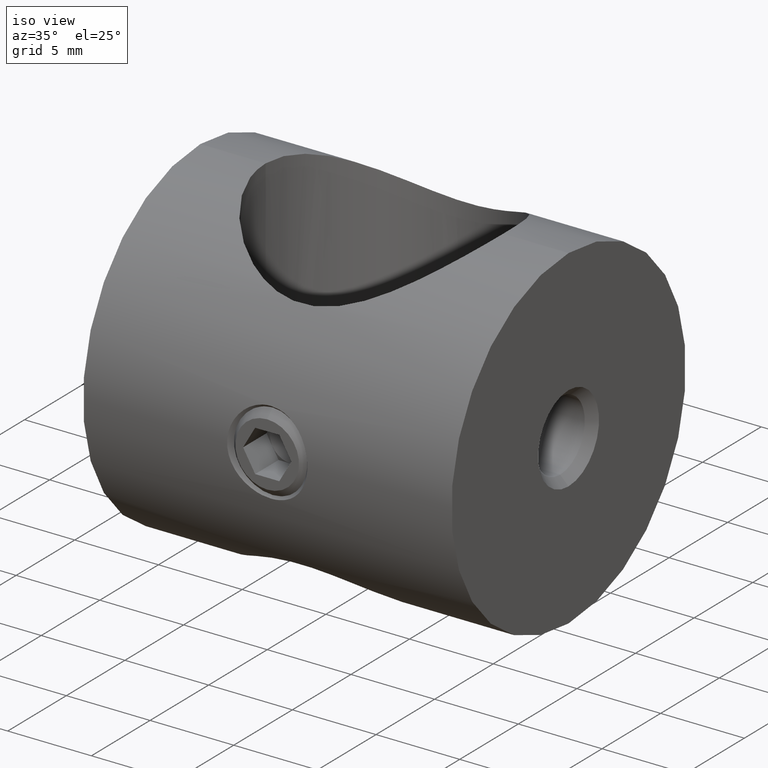
[diagram: clean part render]
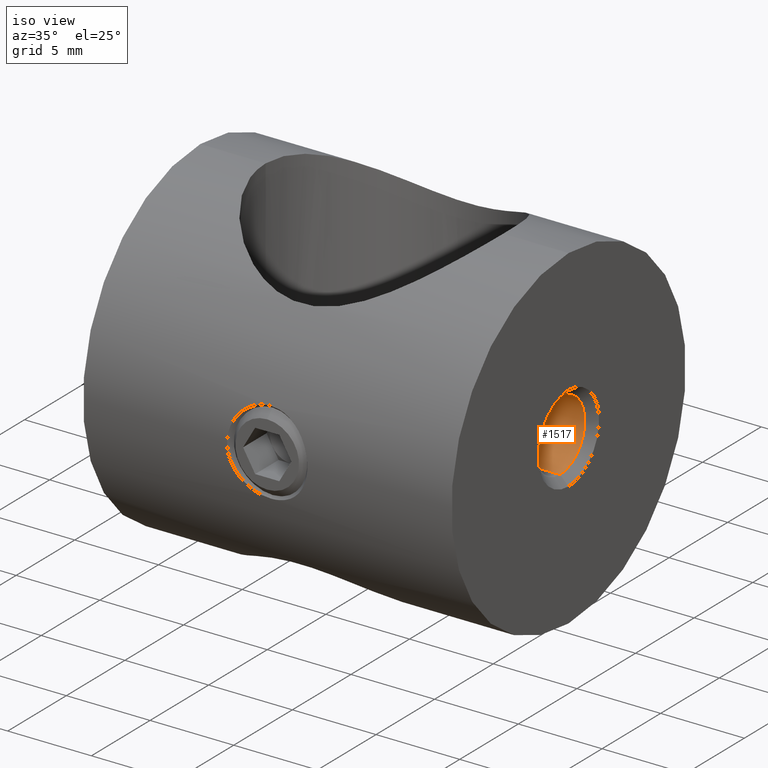
[diagram: same view with one face highlighted and labeled with its STEP entity id]
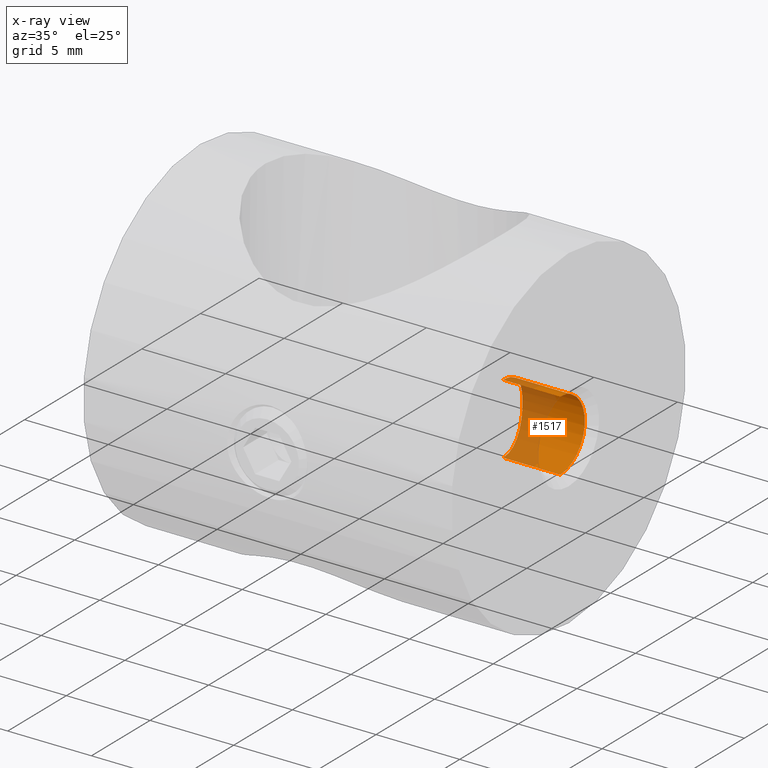
[diagram: x-ray of the same camera — body ghosted, the highlighted face saturated]
A machine part, iso view. The second image highlights one B-rep face of the part: STEP entity #1517.
The next image is the same camera in x-ray: the body ghosted, the highlighted face saturated — about 43% of this face is hidden behind the body in this view.
In plain terms, the highlighted cylindrical surface (partial cylindrical patch) has radius 2.1 mm, axis along (1, 0, 0).
Its self-contained STEP definition (entity closure, byte-faithful):
#167 = VERTEX_POINT ( 'NONE', #10330 ) ;
#825 = VERTEX_POINT ( 'NONE', #14070 ) ;
#895 = EDGE_CURVE ( 'NONE', #6205, #825, #10374, .T. ) ;
#1090 = CARTESIAN_POINT ( 'NONE',  ( 6.782349470625482546, 2.099937061584781883, -0.1388013453450364365 ) ) ;
#1338 = AXIS2_PLACEMENT_3D ( 'NONE', #7922, #11264, #5352 ) ;
#1421 = CARTESIAN_POINT ( 'NONE',  ( 10.50000000000000355, 0.000000000000000000, -2.099999999999993427 ) ) ;
#1517 = ADVANCED_FACE ( 'NONE', ( #11672 ), #5958, .F. ) ;
#2212 = CARTESIAN_POINT ( 'NONE',  ( 7.080245790686972462, 0.5462035636502061697, -2.032374016832112495 ) ) ;
#2260 = CARTESIAN_POINT ( 'NONE',  ( 6.901617245126526079, 1.678396397419325892, 1.291576018960029826 ) ) ;
#2504 = ORIENTED_EDGE ( 'NONE', *, *, #4698, .F. ) ;
#3389 = CARTESIAN_POINT ( 'NONE',  ( 7.022224228291169545, 1.054367326703610885, -1.821285742766473481 ) ) ;
#3440 = CARTESIAN_POINT ( 'NONE',  ( 6.984198309087503276, 1.282266932596181963, 1.668665915793556165 ) ) ;
#4034 = DIRECTION ( 'NONE',  ( 1.000000000000000000, -0.000000000000000000, -0.000000000000000000 ) ) ;
#4146 = VERTEX_POINT ( 'NONE', #13711 ) ;
#4166 = EDGE_LOOP ( 'NONE', ( #10652, #2504, #7542, #7976 ) ) ;
#4236 = B_SPLINE_CURVE_WITH_KNOTS ( 'NONE', 3,
 ( #12772, #9214, #8222, #2212, #10443, #8078, #3389, #11639, #5862, #13987, #4575, #5717, #14096, #6955, #1090, #12871, #15185, #15286, #9310, #7003, #2260, #10494, #3440, #11595, #15082, #11689, #4624, #5814, #9360, #14038 ),
 .UNSPECIFIED., .F., .F.,
 ( 4, 2, 2, 2, 2, 2, 2, 2, 2, 2, 2, 2, 2, 2, 4 ),
 ( 2.387554046110489669E-20, 0.0004126682454879728726, 0.0008253364909759457451, 0.001238004736463918509, 0.001650672981951891490, 0.002476009472927836151, 0.002888677718415808265, 0.003301345963903779945, 0.003714014209391752058, 0.004126682454879723738, 0.004952018945855667965, 0.005364687191343639645, 0.005777355436831611325, 0.006190023682319582138, 0.006602691927807553818 ),
 .UNSPECIFIED. ) ;
#4575 = CARTESIAN_POINT ( 'NONE',  ( 6.859898304378433842, 1.834038904729700104, -1.058774660597840978 ) ) ;
#4624 = CARTESIAN_POINT ( 'NONE',  ( 7.080114883424740491, 0.5481068254442518217, 2.031920864838557605 ) ) ;
#4698 = EDGE_CURVE ( 'NONE', #167, #4146, #4236, .T. ) ;
#5262 = VECTOR ( 'NONE', #4034, 1000.000000000000000 ) ;
#5287 = AXIS2_PLACEMENT_3D ( 'NONE', #10632, #9435, #8100 ) ;
#5352 = DIRECTION ( 'NONE',  ( 0.000000000000000000, 0.000000000000000000, -1.000000000000000000 ) ) ;
#5717 = CARTESIAN_POINT ( 'NONE',  ( 6.815204645832431574, 1.991472193640447585, -0.6802309339139395172 ) ) ;
#5814 = CARTESIAN_POINT ( 'NONE',  ( 7.095897631570864839, 0.2769199466598917803, 2.086249945765542790 ) ) ;
#5862 = CARTESIAN_POINT ( 'NONE',  ( 6.963455894559235304, 1.389233117222716807, -1.580686677737290102 ) ) ;
#5958 = CYLINDRICAL_SURFACE ( 'NONE', #1338, 2.099999999999993427 ) ;
#6205 = VERTEX_POINT ( 'NONE', #1421 ) ;
#6955 = CARTESIAN_POINT ( 'NONE',  ( 6.786574712244387797, 2.086433839472588758, -0.2755932876534409326 ) ) ;
#7003 = CARTESIAN_POINT ( 'NONE',  ( 6.860153322571835410, 1.833153994379061125, 1.061104663580003660 ) ) ;
#7425 = CARTESIAN_POINT ( 'NONE',  ( 11.00000000000000000, 0.000000000000000000, -2.099999999999993427 ) ) ;
#7542 = ORIENTED_EDGE ( 'NONE', *, *, #11225, .T. ) ;
#7922 = CARTESIAN_POINT ( 'NONE',  ( 11.00000000000000000, 0.000000000000000000, 0.000000000000000000 ) ) ;
#7976 = ORIENTED_EDGE ( 'NONE', *, *, #895, .T. ) ;
#8078 = CARTESIAN_POINT ( 'NONE',  ( 7.039455233737017537, 0.9340290052023202394, -1.885872122113020133 ) ) ;
#8100 = DIRECTION ( 'NONE',  ( 0.000000000000000000, 0.000000000000000000, -1.000000000000000000 ) ) ;
#8222 = CARTESIAN_POINT ( 'NONE',  ( 7.095889944203542576, 0.2767032512201560435, -2.086220934609437805 ) ) ;
#8973 = VECTOR ( 'NONE', #12283, 1000.000000000000000 ) ;
#9214 = CARTESIAN_POINT ( 'NONE',  ( 7.100000000000002309, 0.1395935840101247549, -2.099999999999993872 ) ) ;
#9310 = CARTESIAN_POINT ( 'NONE',  ( 6.814980563361859645, 1.992254806764418351, 0.6782477080454617502 ) ) ;
#9360 = CARTESIAN_POINT ( 'NONE',  ( 7.099999999999996980, 0.1375557234325970324, 2.099999999999992983 ) ) ;
#9435 = DIRECTION ( 'NONE',  ( 1.000000000000000000, 0.000000000000000000, 0.000000000000000000 ) ) ;
#10330 = CARTESIAN_POINT ( 'NONE',  ( 7.099999999999999645, 2.458807522702886608E-17, -2.099999999999993427 ) ) ;
#10374 = CIRCLE ( 'NONE', #5287, 2.099999999999993427 ) ;
#10443 = CARTESIAN_POINT ( 'NONE',  ( 7.068514788919580738, 0.6800285649676097721, -1.991603623804294010 ) ) ;
#10494 = CARTESIAN_POINT ( 'NONE',  ( 6.963816921382948166, 1.387475279684309282, 1.582311005514036806 ) ) ;
#10632 = CARTESIAN_POINT ( 'NONE',  ( 10.50000000000000355, 0.000000000000000000, 0.000000000000000000 ) ) ;
#10652 = ORIENTED_EDGE ( 'NONE', *, *, #13329, .F. ) ;
#11225 = EDGE_CURVE ( 'NONE', #167, #6205, #12669, .T. ) ;
#11264 = DIRECTION ( 'NONE',  ( 1.000000000000000000, -0.000000000000000000, -0.000000000000000000 ) ) ;
#11595 = CARTESIAN_POINT ( 'NONE',  ( 7.022074291837311577, 1.055323242901380576, 1.820699667148012679 ) ) ;
#11639 = CARTESIAN_POINT ( 'NONE',  ( 6.984239648260700761, 1.282076482774271886, -1.668847539094478138 ) ) ;
#11672 = FACE_OUTER_BOUND ( 'NONE', #4166, .T. ) ;
#11689 = CARTESIAN_POINT ( 'NONE',  ( 7.068594988563487114, 0.6791173984733034352, 1.991881632180184436 ) ) ;
#12283 = DIRECTION ( 'NONE',  ( 1.000000000000000000, -0.000000000000000000, -0.000000000000000000 ) ) ;
#12669 = LINE ( 'NONE', #7425, #8973 ) ;
#12772 = CARTESIAN_POINT ( 'NONE',  ( 7.099999999999999645, 2.458807522702886608E-17, -2.099999999999993427 ) ) ;
#12871 = CARTESIAN_POINT ( 'NONE',  ( 6.782310630241686233, 2.100062503646424439, 0.1368903096103946393 ) ) ;
#13329 = EDGE_CURVE ( 'NONE', #4146, #825, #13714, .T. ) ;
#13711 = CARTESIAN_POINT ( 'NONE',  ( 7.099999999999999645, -1.552560303009094218E-20, 2.099999999999993427 ) ) ;
#13714 = LINE ( 'NONE', #14692, #5262 ) ;
#13987 = CARTESIAN_POINT ( 'NONE',  ( 6.901680541053728746, 1.677960758504404959, -1.291744479987200211 ) ) ;
#14038 = CARTESIAN_POINT ( 'NONE',  ( 7.099999999999999645, -1.552560303009094218E-20, 2.099999999999993427 ) ) ;
#14070 = CARTESIAN_POINT ( 'NONE',  ( 10.50000000000000355, 2.571758278209433575E-16, 2.099999999999993427 ) ) ;
#14096 = CARTESIAN_POINT ( 'NONE',  ( 6.803007693833080793, 2.032212786353638556, -0.5470548580140212058 ) ) ;
#14692 = CARTESIAN_POINT ( 'NONE',  ( 11.00000000000000000, 2.571758278209433575E-16, 2.099999999999993427 ) ) ;
#15082 = CARTESIAN_POINT ( 'NONE',  ( 7.039675831981103471, 0.9323088189409545201, 1.886688406613785229 ) ) ;
#15185 = CARTESIAN_POINT ( 'NONE',  ( 6.786644351226339467, 2.086205837299403232, 0.2769462870695639234 ) ) ;
#15286 = CARTESIAN_POINT ( 'NONE',  ( 6.803013300323068613, 2.032192505950631833, 0.5469439278955470218 ) ) ;